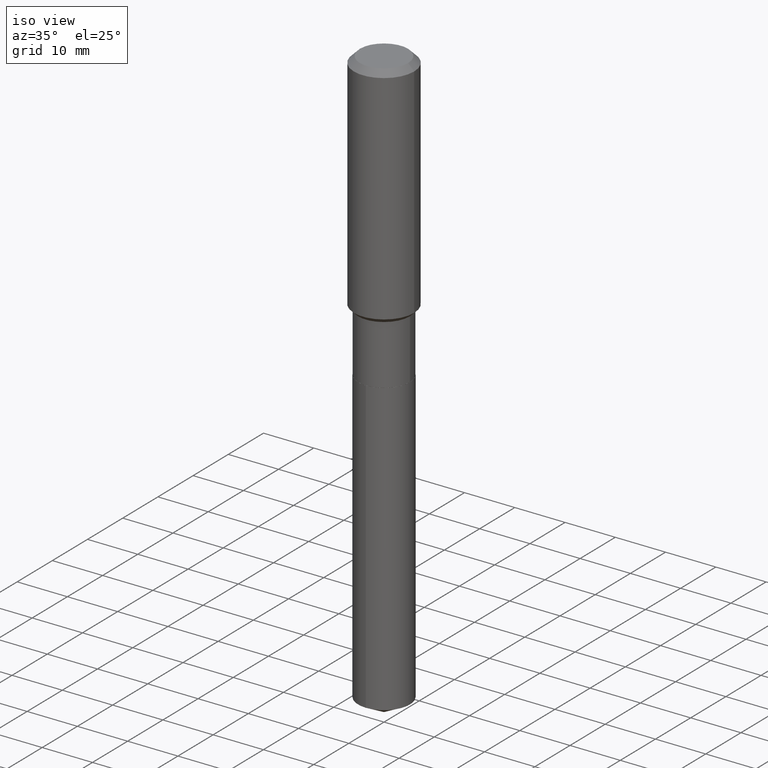
[diagram: clean part render]
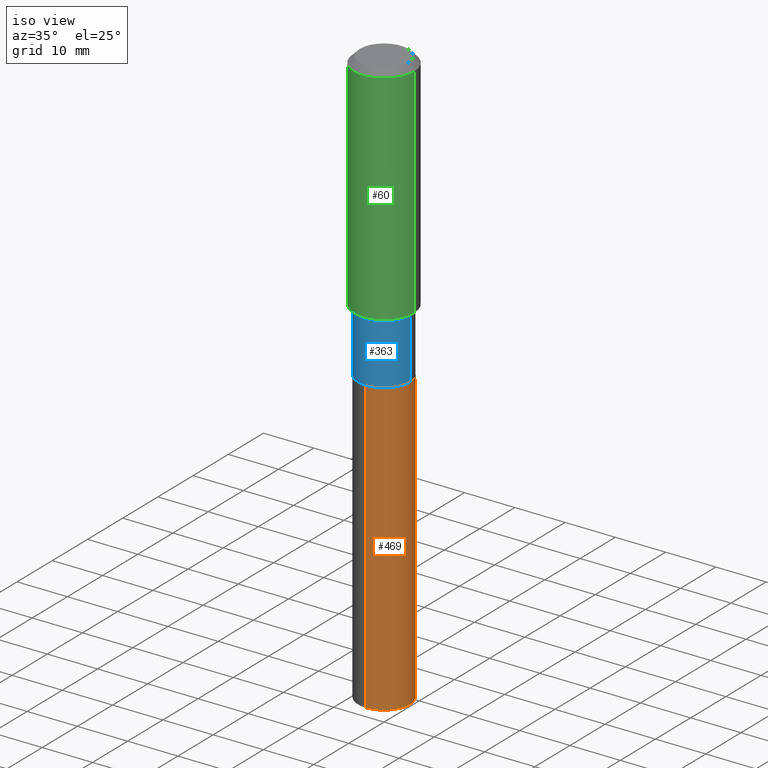
[diagram: same view with three faces highlighted in distinct colors, each labeled with its STEP entity id]
A machine part, iso view with three faces highlighted in distinct colors.
Their STEP definitions:

[orange] entity #469 — the highlighted cylindrical surface (edge-blend (fillet) strip) has radius 5.1498 mm, axis along (-0, 0, 1).
#8 = VECTOR ( 'NONE', #164, 39.37007874015748143 ) ;
#15 = CARTESIAN_POINT ( 'NONE',  ( 1.440625396753714058E-15, 0.2027499999999921310, -2.255900000000000016 ) ) ;
#40 = EDGE_CURVE ( 'NONE', #424, #115, #460, .T. ) ;
#48 = LINE ( 'NONE', #100, #191 ) ;
#49 = DIRECTION ( 'NONE',  ( -2.445450010346180053E-29, 3.491508255554324007E-15, 1.000000000000000000 ) ) ;
#58 = DIRECTION ( 'NONE',  ( -2.445450010346180333E-29, 3.491508255554324402E-15, 1.000000000000000000 ) ) ;
#65 = CIRCLE ( 'NONE', #422, 0.2027500000000000135 ) ;
#100 = CARTESIAN_POINT ( 'NONE',  ( 1.440625396753658049E-15, 0.2027499999999921310, -2.255900000000000016 ) ) ;
#106 = ORIENTED_EDGE ( 'NONE', *, *, #343, .T. ) ;
#115 = VERTEX_POINT ( 'NONE', #463 ) ;
#127 = DIRECTION ( 'NONE',  ( -6.982962677686265922E-15, -1.000000000000000000, 4.042191852524186848E-15 ) ) ;
#130 = ORIENTED_EDGE ( 'NONE', *, *, #40, .F. ) ;
#136 = CARTESIAN_POINT ( 'NONE',  ( -1.415795682900779441E-15, -0.2027500000000158065, -4.537895912730635750 ) ) ;
#141 = CARTESIAN_POINT ( 'NONE',  ( 5.516733079873047692E-29, -7.876432752296249824E-15, -2.255899999999999128 ) ) ;
#164 = DIRECTION ( 'NONE',  ( -2.445450010346180333E-29, 3.491508255554324402E-15, 1.000000000000000000 ) ) ;
#191 = VECTOR ( 'NONE', #58, 39.37007874015748143 ) ;
#220 = CARTESIAN_POINT ( 'NONE',  ( 1.109724000827012398E-28, -1.584404032073649329E-14, -4.537895912730635750 ) ) ;
#223 = DIRECTION ( 'NONE',  ( -2.445450010346180053E-29, 3.491508255554324007E-15, 1.000000000000000000 ) ) ;
#248 = CARTESIAN_POINT ( 'NONE',  ( -1.415795682900835253E-15, -0.2027500000000078961, -2.255899999999998684 ) ) ;
#274 = VERTEX_POINT ( 'NONE', #15 ) ;
#275 = EDGE_CURVE ( 'NONE', #424, #349, #65, .T. ) ;
#283 = ORIENTED_EDGE ( 'NONE', *, *, #376, .F. ) ;
#294 = CARTESIAN_POINT ( 'NONE',  ( 5.516733079873047692E-29, -7.876432752296249824E-15, -2.255899999999999128 ) ) ;
#299 = FACE_OUTER_BOUND ( 'NONE', #465, .T. ) ;
#324 = AXIS2_PLACEMENT_3D ( 'NONE', #294, #476, #403 ) ;
#328 = ORIENTED_EDGE ( 'NONE', *, *, #275, .T. ) ;
#343 = EDGE_CURVE ( 'NONE', #349, #274, #48, .T. ) ;
#349 = VERTEX_POINT ( 'NONE', #464 ) ;
#364 = DIRECTION ( 'NONE',  ( -6.982962677686265922E-15, -1.000000000000000000, 2.694794568349458162E-15 ) ) ;
#367 = CYLINDRICAL_SURFACE ( 'NONE', #324, 0.2027500000000000135 ) ;
#376 = EDGE_CURVE ( 'NONE', #115, #274, #488, .T. ) ;
#403 = DIRECTION ( 'NONE',  ( -6.982962677686265922E-15, -1.000000000000000000, 4.042191852524186848E-15 ) ) ;
#422 = AXIS2_PLACEMENT_3D ( 'NONE', #220, #49, #364 ) ;
#424 = VERTEX_POINT ( 'NONE', #136 ) ;
#426 = AXIS2_PLACEMENT_3D ( 'NONE', #141, #223, #127 ) ;
#460 = LINE ( 'NONE', #248, #8 ) ;
#463 = CARTESIAN_POINT ( 'NONE',  ( -1.415795682900835253E-15, -0.2027500000000078961, -2.255899999999998684 ) ) ;
#464 = CARTESIAN_POINT ( 'NONE',  ( 1.440625396753713861E-15, 0.2027499999999841651, -4.537895912730636638 ) ) ;
#465 = EDGE_LOOP ( 'NONE', ( #328, #106, #283, #130 ) ) ;
#469 = ADVANCED_FACE ( 'NONE', ( #299 ), #367, .T. ) ;
#476 = DIRECTION ( 'NONE',  ( -2.445450010346180053E-29, 3.491508255554324007E-15, 1.000000000000000000 ) ) ;
#488 = CIRCLE ( 'NONE', #426, 0.2027500000000000135 ) ;

[blue] entity #363 — the highlighted cylindrical surface (edge-blend (fillet) strip) has radius 5.1498 mm, axis along (-0, 0, 1).
#7 = DIRECTION ( 'NONE',  ( -2.445468806185136877E-29, 3.491481338843145188E-15, 1.000000000000000000 ) ) ;
#25 = CARTESIAN_POINT ( 'NONE',  ( 0.2027499999999999858, -1.415795682900890473E-15, 9.886448412926258951E-30 ) ) ;
#45 = AXIS2_PLACEMENT_3D ( 'NONE', #477, #473, #215 ) ;
#67 = VERTEX_POINT ( 'NONE', #412 ) ;
#84 = FACE_OUTER_BOUND ( 'NONE', #107, .T. ) ;
#92 = LINE ( 'NONE', #25, #190 ) ;
#107 = EDGE_LOOP ( 'NONE', ( #202, #249, #171, #161 ) ) ;
#109 = CIRCLE ( 'NONE', #45, 0.2027500000000000135 ) ;
#120 = EDGE_CURVE ( 'NONE', #67, #307, #359, .T. ) ;
#152 = CARTESIAN_POINT ( 'NONE',  ( 0.2027500000000000135, -9.290482694527719779E-15, -2.255399999999999405 ) ) ;
#161 = ORIENTED_EDGE ( 'NONE', *, *, #205, .F. ) ;
#171 = ORIENTED_EDGE ( 'NONE', *, *, #227, .T. ) ;
#176 = CYLINDRICAL_SURFACE ( 'NONE', #461, 0.2027499999999999858 ) ;
#178 = AXIS2_PLACEMENT_3D ( 'NONE', #479, #369, #298 ) ;
#187 = DIRECTION ( 'NONE',  ( -2.445468806185136877E-29, 3.491481338843145188E-15, 1.000000000000000000 ) ) ;
#190 = VECTOR ( 'NONE', #187, 39.37007874015748143 ) ;
#200 = EDGE_CURVE ( 'NONE', #67, #311, #109, .T. ) ;
#201 = CARTESIAN_POINT ( 'NONE',  ( -0.2027499999999999858, 1.440625396753603026E-15, -9.973140895491819537E-30 ) ) ;
#202 = ORIENTED_EDGE ( 'NONE', *, *, #120, .F. ) ;
#205 = EDGE_CURVE ( 'NONE', #307, #433, #386, .T. ) ;
#215 = DIRECTION ( 'NONE',  ( 1.000000000000000000, -6.982962677686266711E-15, 0.000000000000000000 ) ) ;
#227 = EDGE_CURVE ( 'NONE', #311, #433, #92, .T. ) ;
#230 = VECTOR ( 'NONE', #7, 39.37007874015748143 ) ;
#249 = ORIENTED_EDGE ( 'NONE', *, *, #200, .T. ) ;
#259 = CARTESIAN_POINT ( 'NONE',  ( 0.000000000000000000, 0.000000000000000000, 0.000000000000000000 ) ) ;
#264 = DIRECTION ( 'NONE',  ( 1.000000000000000000, -6.982962677686266711E-15, 4.876176775795935793E-29 ) ) ;
#298 = DIRECTION ( 'NONE',  ( 1.000000000000000000, -6.982962677686269866E-15, 0.000000000000000000 ) ) ;
#307 = VERTEX_POINT ( 'NONE', #453 ) ;
#311 = VERTEX_POINT ( 'NONE', #152 ) ;
#359 = LINE ( 'NONE', #201, #230 ) ;
#363 = ADVANCED_FACE ( 'NONE', ( #84 ), #176, .T. ) ;
#369 = DIRECTION ( 'NONE',  ( -2.445468806185136597E-29, 3.491481338843145583E-15, 1.000000000000000000 ) ) ;
#386 = CIRCLE ( 'NONE', #178, 0.2027499999999999303 ) ;
#406 = DIRECTION ( 'NONE',  ( -2.445468806185136597E-29, 3.491481338843145583E-15, 1.000000000000000000 ) ) ;
#412 = CARTESIAN_POINT ( 'NONE',  ( -0.2027500000000000135, -5.620895611056656589E-15, -2.255399999999999405 ) ) ;
#433 = VERTEX_POINT ( 'NONE', #467 ) ;
#453 = CARTESIAN_POINT ( 'NONE',  ( -0.2027499999999999303, -5.620895611056657378E-15, -1.789599999999999413 ) ) ;
#461 = AXIS2_PLACEMENT_3D ( 'NONE', #259, #406, #264 ) ;
#467 = CARTESIAN_POINT ( 'NONE',  ( 0.2027499999999999303, -7.664150686894582368E-15, -1.789599999999999413 ) ) ;
#473 = DIRECTION ( 'NONE',  ( -2.445468806185136597E-29, 3.491481338843145583E-15, 1.000000000000000000 ) ) ;
#477 = CARTESIAN_POINT ( 'NONE',  ( 5.515510345469956011E-29, -7.874687011626829109E-15, -2.255399999999999405 ) ) ;
#479 = CARTESIAN_POINT ( 'NONE',  ( 4.376410975548918967E-29, -6.248355003993691698E-15, -1.789599999999999413 ) ) ;

[green] entity #60 — the highlighted cylindrical surface (partial cylindrical patch) has radius 5.9995 mm, axis along (-0, 0, 1).
#2 = EDGE_CURVE ( 'NONE', #347, #46, #124, .T. ) ;
#17 = DIRECTION ( 'NONE',  ( -2.445468806185136597E-29, 3.491481338843145583E-15, 1.000000000000000000 ) ) ;
#46 = VERTEX_POINT ( 'NONE', #96 ) ;
#52 = DIRECTION ( 'NONE',  ( 1.000000000000000000, -6.982962677686266711E-15, 0.000000000000000000 ) ) ;
#60 = ADVANCED_FACE ( 'NONE', ( #188 ), #103, .T. ) ;
#62 = LINE ( 'NONE', #336, #487 ) ;
#76 = EDGE_CURVE ( 'NONE', #121, #170, #62, .T. ) ;
#96 = CARTESIAN_POINT ( 'NONE',  ( -0.2361999999999999933, -1.469949323962811871E-15, -0.04724000000000028177 ) ) ;
#103 = CYLINDRICAL_SURFACE ( 'NONE', #323, 0.2362000000000001043 ) ;
#121 = VERTEX_POINT ( 'NONE', #125 ) ;
#124 = LINE ( 'NONE', #327, #317 ) ;
#125 = CARTESIAN_POINT ( 'NONE',  ( 0.2362000000000002153, -7.780940737678886085E-15, -1.756149999999999212 ) ) ;
#158 = CIRCLE ( 'NONE', #455, 0.2361999999999999933 ) ;
#167 = ORIENTED_EDGE ( 'NONE', *, *, #2, .F. ) ;
#170 = VERTEX_POINT ( 'NONE', #183 ) ;
#183 = CARTESIAN_POINT ( 'NONE',  ( 0.2361999999999999933, -1.814313362916447440E-15, -0.04724000000000028177 ) ) ;
#186 = DIRECTION ( 'NONE',  ( 1.000000000000000000, -6.982962677686266711E-15, 0.000000000000000000 ) ) ;
#188 = FACE_OUTER_BOUND ( 'NONE', #394, .T. ) ;
#214 = CARTESIAN_POINT ( 'NONE',  ( -0.2362000000000002153, -4.453263011344030010E-15, -1.756149999999999212 ) ) ;
#218 = DIRECTION ( 'NONE',  ( 1.000000000000000000, -6.982962677686266711E-15, 4.876176775795935793E-29 ) ) ;
#233 = EDGE_CURVE ( 'NONE', #46, #170, #158, .T. ) ;
#236 = DIRECTION ( 'NONE',  ( -2.445468806185136877E-29, 3.491481338843145188E-15, 1.000000000000000000 ) ) ;
#281 = ORIENTED_EDGE ( 'NONE', *, *, #233, .F. ) ;
#289 = CARTESIAN_POINT ( 'NONE',  ( 4.294610043982025794E-29, -6.131564953209387982E-15, -1.756149999999999212 ) ) ;
#300 = CARTESIAN_POINT ( 'NONE',  ( 1.155239464041865506E-30, -1.649375784469511859E-16, -0.04724000000000028177 ) ) ;
#317 = VECTOR ( 'NONE', #388, 39.37007874015748143 ) ;
#318 = AXIS2_PLACEMENT_3D ( 'NONE', #289, #17, #186 ) ;
#323 = AXIS2_PLACEMENT_3D ( 'NONE', #439, #340, #218 ) ;
#327 = CARTESIAN_POINT ( 'NONE',  ( -0.2362000000000001043, 1.678301941865357380E-15, -1.161852468318209317E-29 ) ) ;
#334 = CIRCLE ( 'NONE', #318, 0.2362000000000002153 ) ;
#336 = CARTESIAN_POINT ( 'NONE',  ( 0.2362000000000001043, -1.649375784469496920E-15, 1.151752954443000508E-29 ) ) ;
#340 = DIRECTION ( 'NONE',  ( -2.445468806185136597E-29, 3.491481338843145583E-15, 1.000000000000000000 ) ) ;
#347 = VERTEX_POINT ( 'NONE', #214 ) ;
#357 = EDGE_CURVE ( 'NONE', #347, #121, #334, .T. ) ;
#388 = DIRECTION ( 'NONE',  ( -2.445468806185136877E-29, 3.491481338843145188E-15, 1.000000000000000000 ) ) ;
#394 = EDGE_LOOP ( 'NONE', ( #167, #436, #430, #281 ) ) ;
#430 = ORIENTED_EDGE ( 'NONE', *, *, #76, .T. ) ;
#436 = ORIENTED_EDGE ( 'NONE', *, *, #357, .T. ) ;
#439 = CARTESIAN_POINT ( 'NONE',  ( 0.000000000000000000, 0.000000000000000000, 0.000000000000000000 ) ) ;
#447 = DIRECTION ( 'NONE',  ( -2.445468806185136597E-29, 3.491481338843145583E-15, 1.000000000000000000 ) ) ;
#455 = AXIS2_PLACEMENT_3D ( 'NONE', #300, #447, #52 ) ;
#487 = VECTOR ( 'NONE', #236, 39.37007874015748143 ) ;